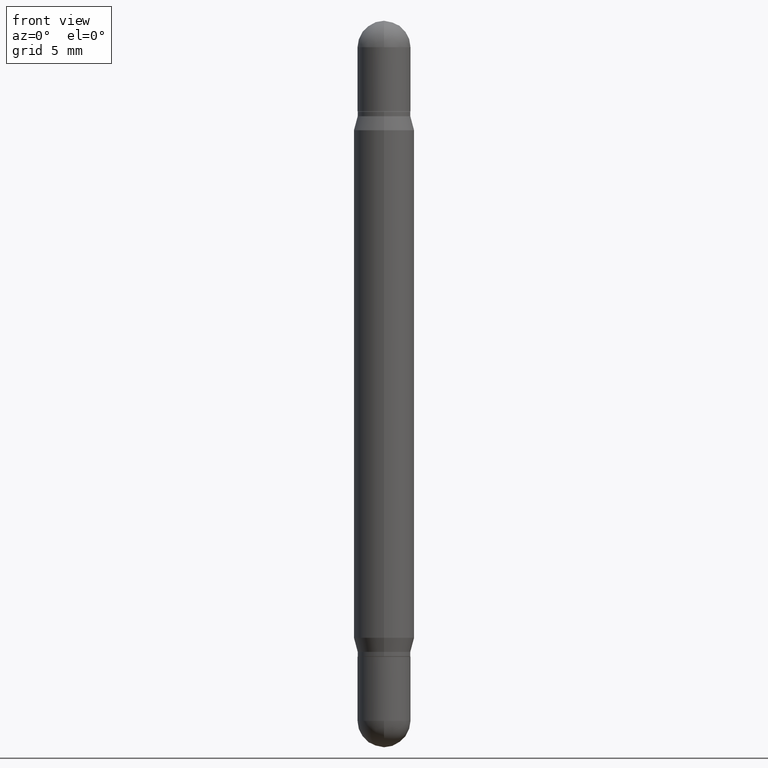
[diagram: clean part render]
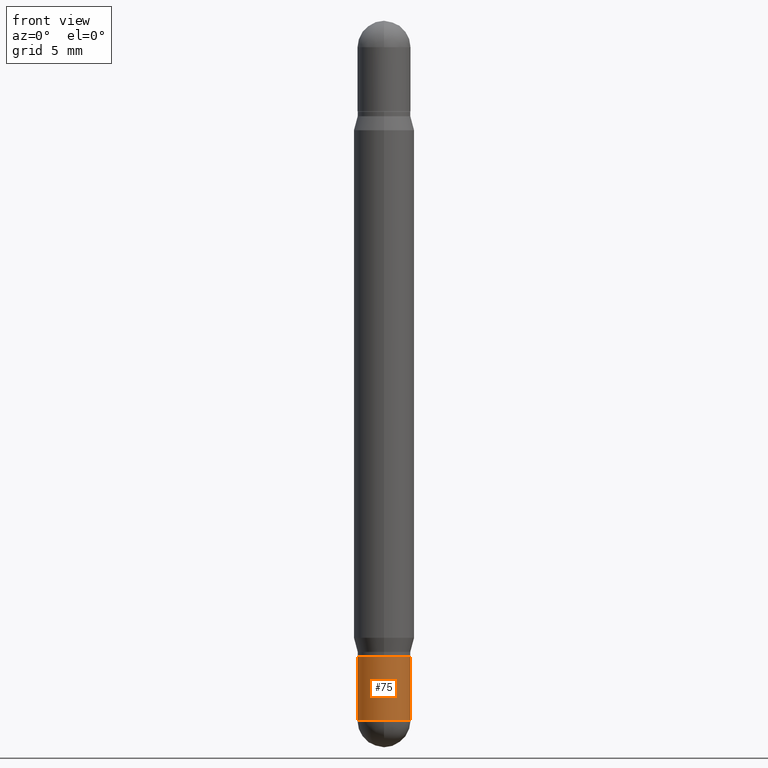
[diagram: same view with one face highlighted and labeled with its STEP entity id]
A machine part, front view. The second image highlights one B-rep face of the part: STEP entity #75.
In plain terms, the highlighted cylindrical surface (edge-blend (fillet) strip) has radius 1.3894 mm, axis along (-0, 0, 1).
Its self-contained STEP definition (entity closure, byte-faithful):
#3 = CARTESIAN_POINT ( 'NONE',  ( 3.210900542521084585E-29, -4.584314997901050598E-15, -1.313000000000000167 ) ) ;
#45 = CARTESIAN_POINT ( 'NONE',  ( 3.534436065579377749E-29, -5.046237979029997798E-15, -1.445300000000000029 ) ) ;
#60 = ORIENTED_EDGE ( 'NONE', *, *, #907, .T. ) ;
#66 = CARTESIAN_POINT ( 'NONE',  ( 0.05470000000000000556, -5.197244546934962984E-15, -1.445300000000000029 ) ) ;
#68 = CIRCLE ( 'NONE', #360, 0.05470000000000000556 ) ;
#75 = ADVANCED_FACE ( 'NONE', ( #507 ), #424, .T. ) ;
#81 = AXIS2_PLACEMENT_3D ( 'NONE', #3, #604, #951 ) ;
#147 = VERTEX_POINT ( 'NONE', #677 ) ;
#156 = EDGE_CURVE ( 'NONE', #160, #147, #266, .T. ) ;
#160 = VERTEX_POINT ( 'NONE', #1020 ) ;
#170 = ORIENTED_EDGE ( 'NONE', *, *, #156, .F. ) ;
#180 = ORIENTED_EDGE ( 'NONE', *, *, #1096, .F. ) ;
#207 = LINE ( 'NONE', #1050, #741 ) ;
#259 = DIRECTION ( 'NONE',  ( -2.445468806185136597E-29, 3.491481338843145583E-15, 1.000000000000000000 ) ) ;
#266 = CIRCLE ( 'NONE', #81, 0.05469999999999999862 ) ;
#289 = AXIS2_PLACEMENT_3D ( 'NONE', #689, #259, #332 ) ;
#319 = EDGE_LOOP ( 'NONE', ( #180, #1103, #60, #555, #170 ) ) ;
#330 = DIRECTION ( 'NONE',  ( -2.445468806185136597E-29, 3.491481338843145583E-15, 1.000000000000000000 ) ) ;
#332 = DIRECTION ( 'NONE',  ( 1.000000000000000000, -6.982962677686266711E-15, 4.876176775795935793E-29 ) ) ;
#360 = AXIS2_PLACEMENT_3D ( 'NONE', #1108, #330, #848 ) ;
#424 = CYLINDRICAL_SURFACE ( 'NONE', #289, 0.05469999999999999862 ) ;
#451 = VERTEX_POINT ( 'NONE', #66 ) ;
#485 = DIRECTION ( 'NONE',  ( 1.000000000000000000, -6.982962677686259611E-15, 0.000000000000000000 ) ) ;
#507 = FACE_OUTER_BOUND ( 'NONE', #319, .T. ) ;
#527 = CARTESIAN_POINT ( 'NONE',  ( -0.05470000000000000556, -4.426609612004749998E-15, -1.445300000000000029 ) ) ;
#533 = VERTEX_POINT ( 'NONE', #527 ) ;
#552 = EDGE_CURVE ( 'NONE', #451, #147, #674, .T. ) ;
#555 = ORIENTED_EDGE ( 'NONE', *, *, #552, .T. ) ;
#566 = DIRECTION ( 'NONE',  ( -2.445468806185136597E-29, 3.491481338843145583E-15, 1.000000000000000000 ) ) ;
#604 = DIRECTION ( 'NONE',  ( -2.445468806185136597E-29, 3.491481338843145583E-15, 1.000000000000000000 ) ) ;
#650 = AXIS2_PLACEMENT_3D ( 'NONE', #45, #566, #485 ) ;
#674 = LINE ( 'NONE', #702, #1065 ) ;
#677 = CARTESIAN_POINT ( 'NONE',  ( 0.05469999999999999862, -4.966283056370488990E-15, -1.313000000000000167 ) ) ;
#689 = CARTESIAN_POINT ( 'NONE',  ( 0.000000000000000000, 0.000000000000000000, 0.000000000000000000 ) ) ;
#702 = CARTESIAN_POINT ( 'NONE',  ( 0.05469999999999999862, -3.819680584694387859E-16, 2.667268696360376954E-30 ) ) ;
#741 = VECTOR ( 'NONE', #898, 39.37007874015748143 ) ;
#796 = VERTEX_POINT ( 'NONE', #900 ) ;
#843 = CIRCLE ( 'NONE', #650, 0.05470000000000000556 ) ;
#848 = DIRECTION ( 'NONE',  ( 1.000000000000000000, -6.982962677686259611E-15, 0.000000000000000000 ) ) ;
#898 = DIRECTION ( 'NONE',  ( -2.445468806185136877E-29, 3.491481338843145188E-15, 1.000000000000000000 ) ) ;
#900 = CARTESIAN_POINT ( 'NONE',  ( -3.819680584694040760E-16, -0.05470000000000515422, -1.445299999999999807 ) ) ;
#907 = EDGE_CURVE ( 'NONE', #796, #451, #843, .T. ) ;
#929 = DIRECTION ( 'NONE',  ( -2.445468806185136877E-29, 3.491481338843145188E-15, 1.000000000000000000 ) ) ;
#951 = DIRECTION ( 'NONE',  ( 1.000000000000000000, -6.982962677686260400E-15, 0.000000000000000000 ) ) ;
#1020 = CARTESIAN_POINT ( 'NONE',  ( -0.05469999999999999862, -4.426609612004749998E-15, -1.313000000000000167 ) ) ;
#1050 = CARTESIAN_POINT ( 'NONE',  ( -0.05469999999999999862, 3.886668764607747919E-16, -2.690657494369433708E-30 ) ) ;
#1065 = VECTOR ( 'NONE', #929, 39.37007874015748143 ) ;
#1074 = EDGE_CURVE ( 'NONE', #533, #796, #68, .T. ) ;
#1096 = EDGE_CURVE ( 'NONE', #533, #160, #207, .T. ) ;
#1103 = ORIENTED_EDGE ( 'NONE', *, *, #1074, .T. ) ;
#1108 = CARTESIAN_POINT ( 'NONE',  ( 3.534436065579377749E-29, -5.046237979029997798E-15, -1.445300000000000029 ) ) ;